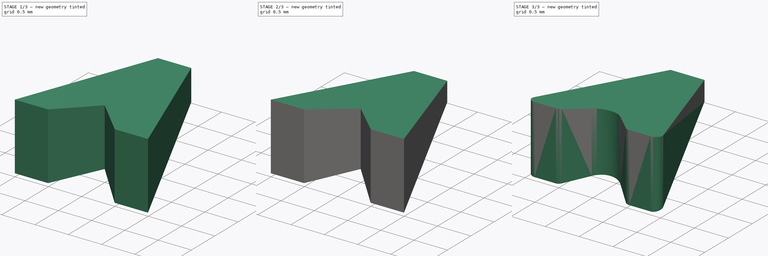
[diagram: build sequence overview — one tinted view per stage of 3, left to right]
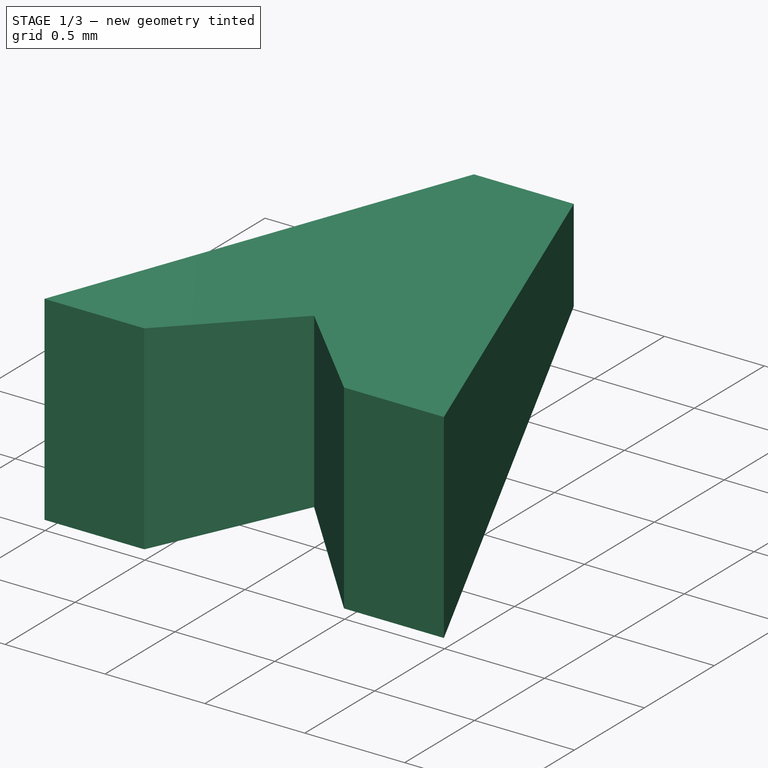
[diagram: stage 1 of 3 — iso view after this stage's code; geometry added in this stage tinted green]
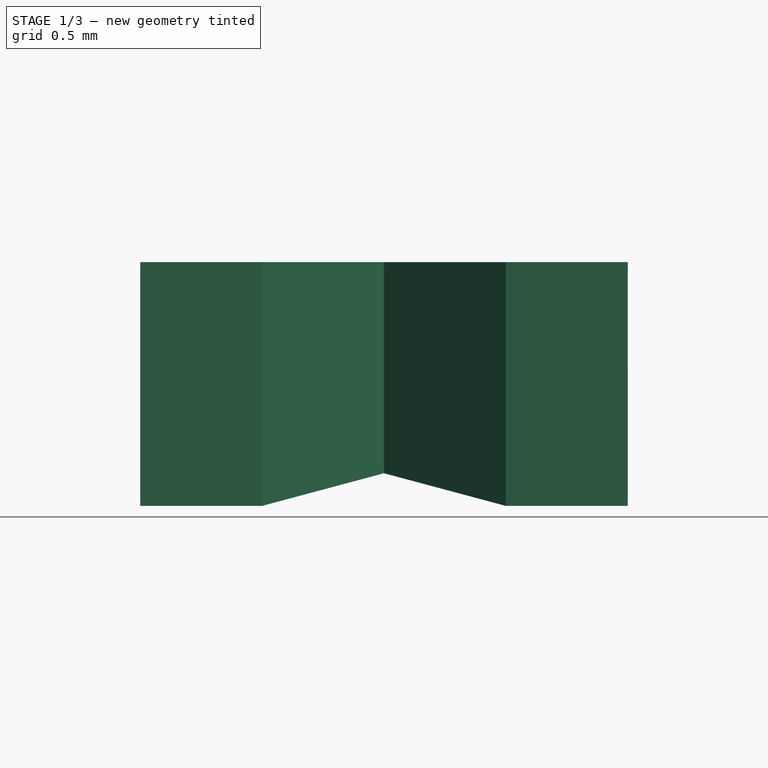
[diagram: stage 1 of 3 — front view after this stage's code; geometry added in this stage tinted green]
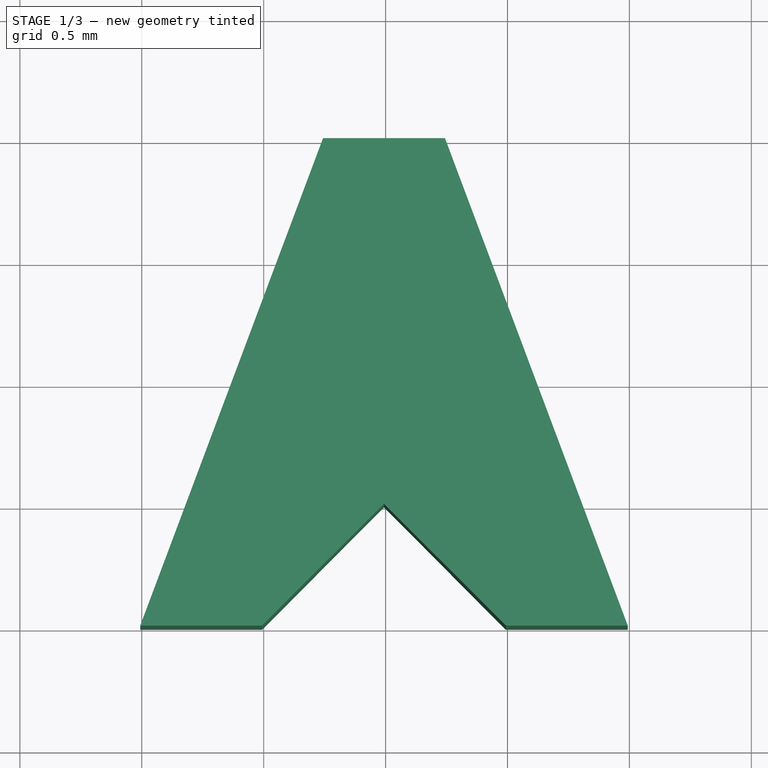
[diagram: stage 1 of 3 — top view after this stage's code; geometry added in this stage tinted green]
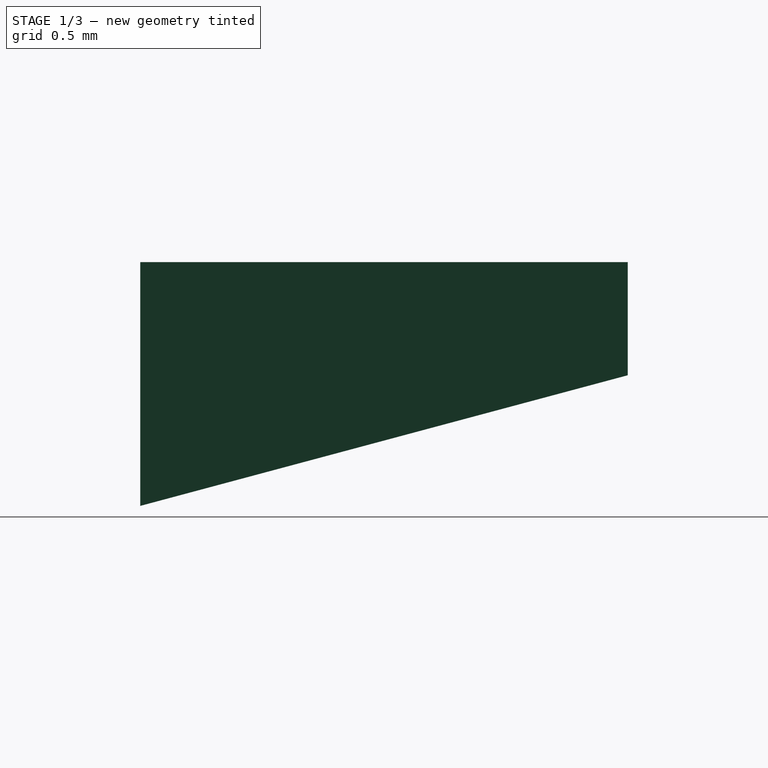
[diagram: stage 1 of 3 — right view after this stage's code; geometry added in this stage tinted green]
FCSTD DOCUMENT  (FreeCAD 0.15R4671 (Git))
Label: body_girl
License: All rights reserved
LicenseURL: http://en.wikipedia.org/wiki/All_rights_reserved
objects: Sketcher::SketchObject×2, PartDesign::Draft×2, PartDesign::Pad×1, Part::Fillet×1, PartDesign::Pocket×1
note: 9 computed .brp shape members not serialized (recipe doc carries the construction recipe); baked Part::Feature solids carry a one-line shape summary decoded from their .brp

FEATURE [Sketcher::SketchObject] Sketch001  label="body_sketch"
  Placement = pos=(-0.00651598,2.00404,0.675175) rot=(0,0,1;0rad)
  sketch-geometry (11):
    g0: GeomPoint [constr] X=0 Y=0 Z=0
    g1: GeomPoint [constr] X=-0.25 Y=0 Z=0
    g2: GeomPoint [constr] X=0.25 Y=0 Z=0
    g3: LineSegment StartX=-0.25 StartY=0 StartZ=0 EndX=-1 EndY=-2 EndZ=0
    g4: LineSegment StartX=-1 StartY=-2 StartZ=0 EndX=-0.5 EndY=-2 EndZ=0
    g5: GeomPoint [constr] X=0.5 Y=-2 Z=0
    g6: LineSegment StartX=0.5 StartY=-2 StartZ=0 EndX=1 EndY=-2 EndZ=0
    g7: LineSegment StartX=0.25 StartY=0 StartZ=0 EndX=1 EndY=-2 EndZ=0
    g8: LineSegment StartX=-0.5 StartY=-2 StartZ=0 EndX=0 EndY=-1.5 EndZ=0
    g9: LineSegment StartX=0.5 StartY=-2 StartZ=0 EndX=0 EndY=-1.5 EndZ=0
    g10: LineSegment StartX=-0.25 StartY=0 StartZ=0 EndX=0.25 EndY=0 EndZ=0
  constraints (25):
    c: DistanceX(g0) = 0
    c: DistanceY(g0) = 0
    c: Symmetric(g2,g1,g-2)
    c: Coincident(g3,g1)
    c: Coincident(g4,g3)
    c: Horizontal(g4)
    c: PointOnObject(g5,g4)
    c: Symmetric(g5,g4,g-2)
    c: Coincident(g6,g5)
    c: Horizontal(g6)
    c: Equal(g4,g6)
    c: Coincident(g7,g2)
    c: Coincident(g7,g6)
    c: Distance(g1,g2) = 0.5
    c: Distance(g2,g6) = 2
    c: Distance(g4) = 0.5
    c: Distance(g4,g5) = 1
    c: Coincident(g8,g4)
    c: PointOnObject(g8,g-2)
    c: Coincident(g9,g5)
    c: Coincident(g9,g8)
    c: DistanceY(g1) = 0
    c: Coincident(g10,g1)
    c: Coincident(g10,g2)
    c: Distance(g8,g10) = 1.5
FEATURE [PartDesign::Pad] Pad  label="body"
  Length = 1
  Length2 = 100
  Placement = pos=(-0.00651598,2.00404,0.675175) rot=(0,0,1;0rad)
  Reversed = true
  Sketch = -> Sketch001
  Type = 0
FEATURE [PartDesign::Draft] Draft  label="angle_back"
  Angle = 15
  Base = -> Pad [Face9]
  NeutralPlane = -> Pad [Face2]
  Placement = pos=(-0.00651598,2.00404,0.675175) rot=(0,0,1;0rad)
  Reversed = true
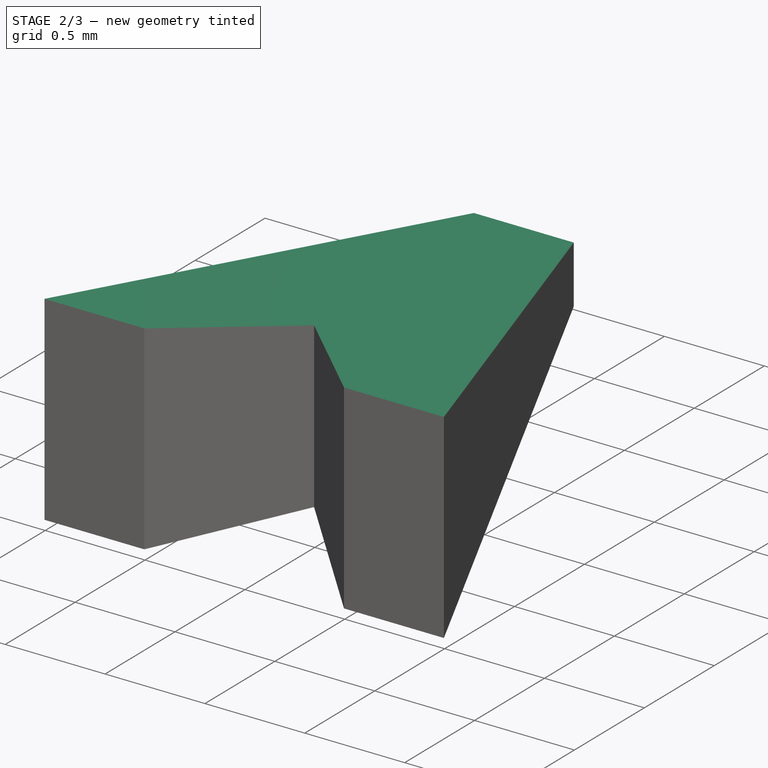
[diagram: stage 2 of 3 — iso view after this stage's code; geometry added in this stage tinted green]
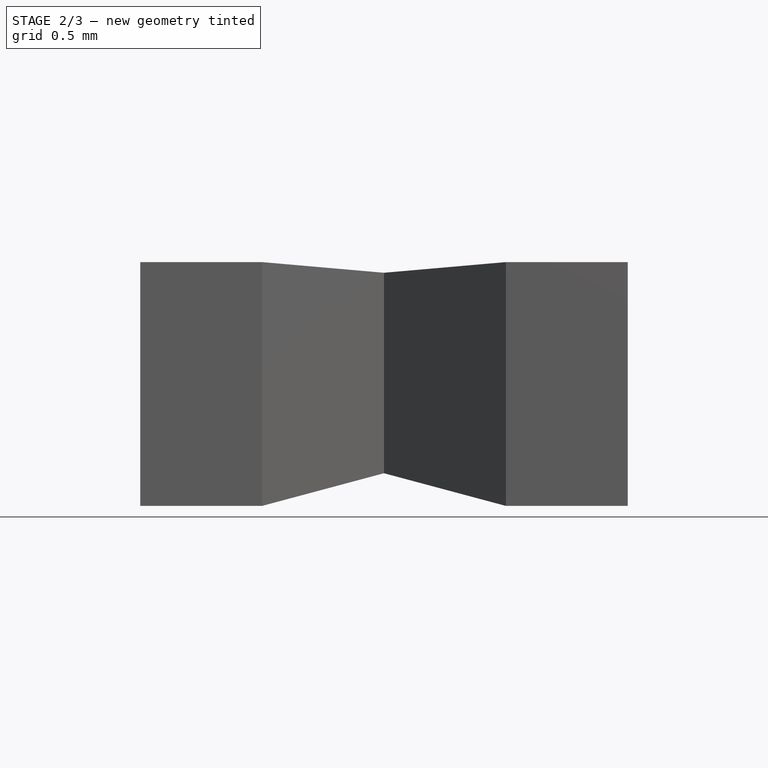
[diagram: stage 2 of 3 — front view after this stage's code; geometry added in this stage tinted green]
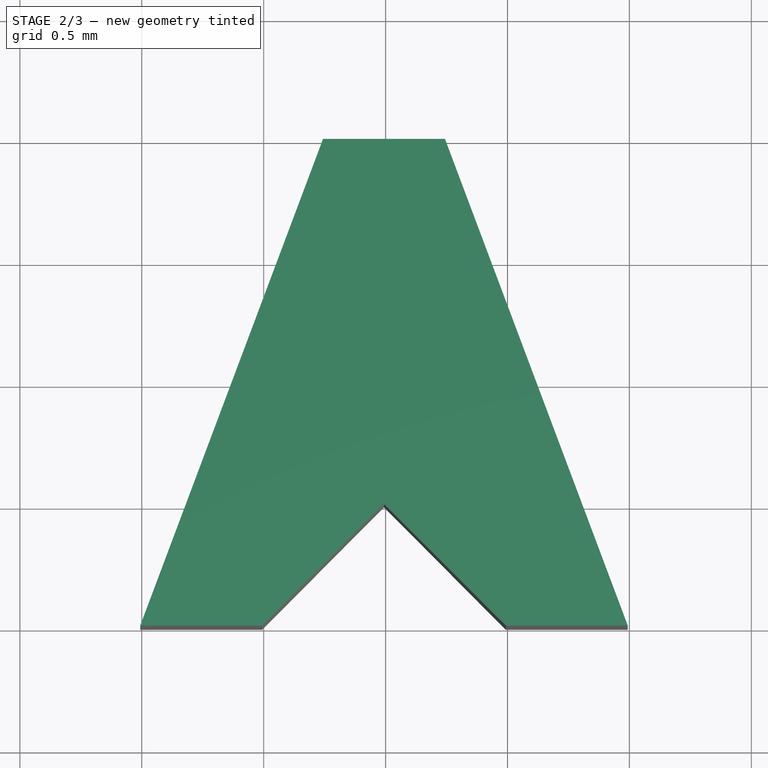
[diagram: stage 2 of 3 — top view after this stage's code; geometry added in this stage tinted green]
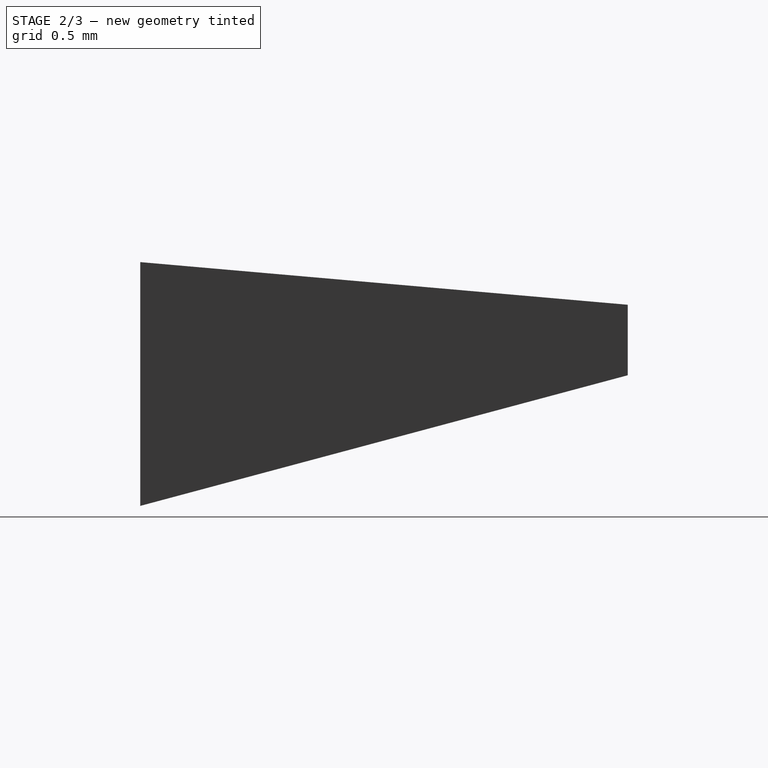
[diagram: stage 2 of 3 — right view after this stage's code; geometry added in this stage tinted green]
FEATURE [PartDesign::Draft] Draft001  label="angle_front"
  Angle = 5
  Base = -> Draft [Face8]
  NeutralPlane = -> Draft [Face2]
  Placement = pos=(-0.00651598,2.00404,0.675175) rot=(0,0,1;0rad)
  Reversed = true
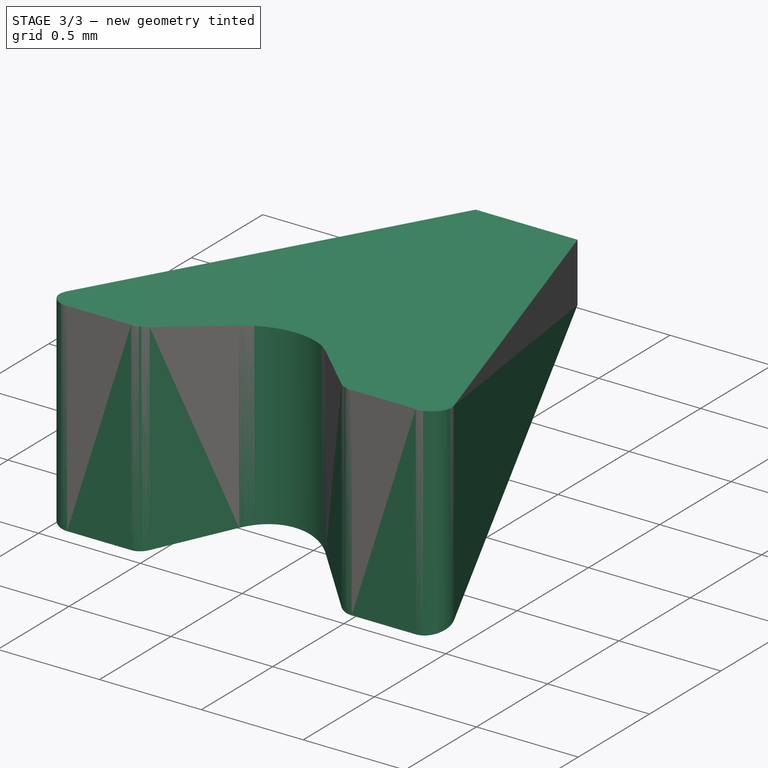
[diagram: stage 3 of 3 — iso view after this stage's code; geometry added in this stage tinted green]
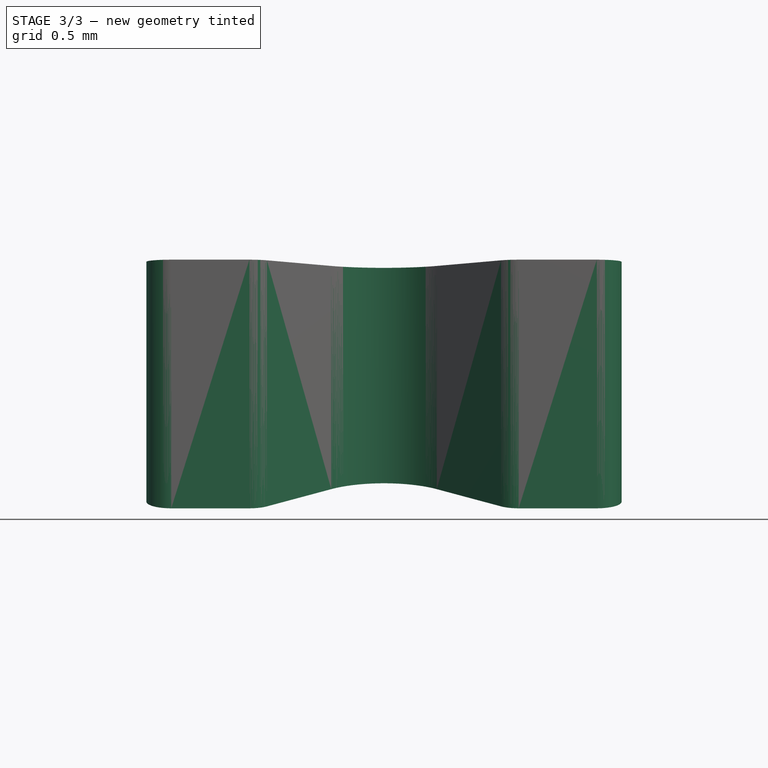
[diagram: stage 3 of 3 — front view after this stage's code; geometry added in this stage tinted green]
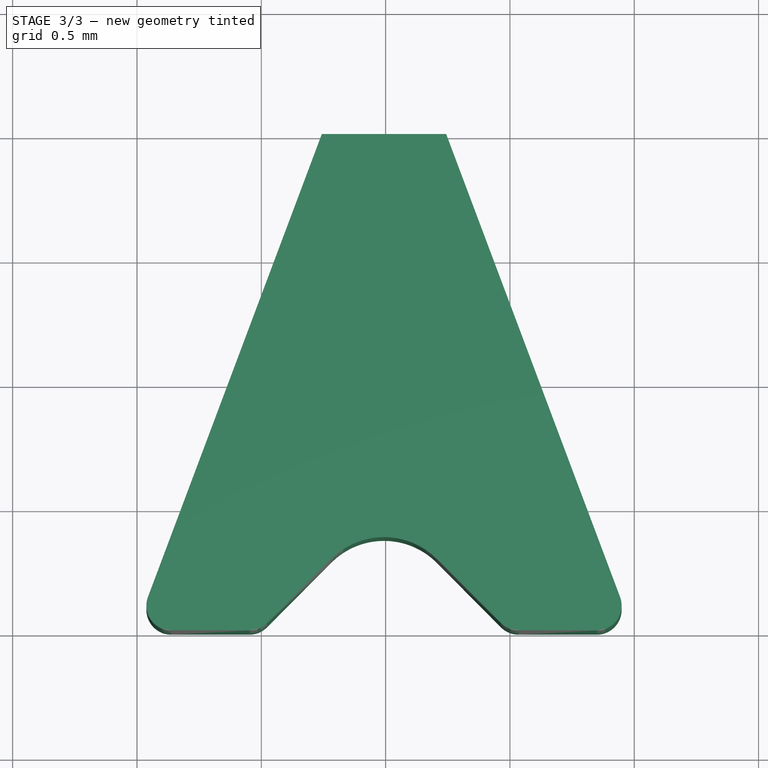
[diagram: stage 3 of 3 — top view after this stage's code; geometry added in this stage tinted green]
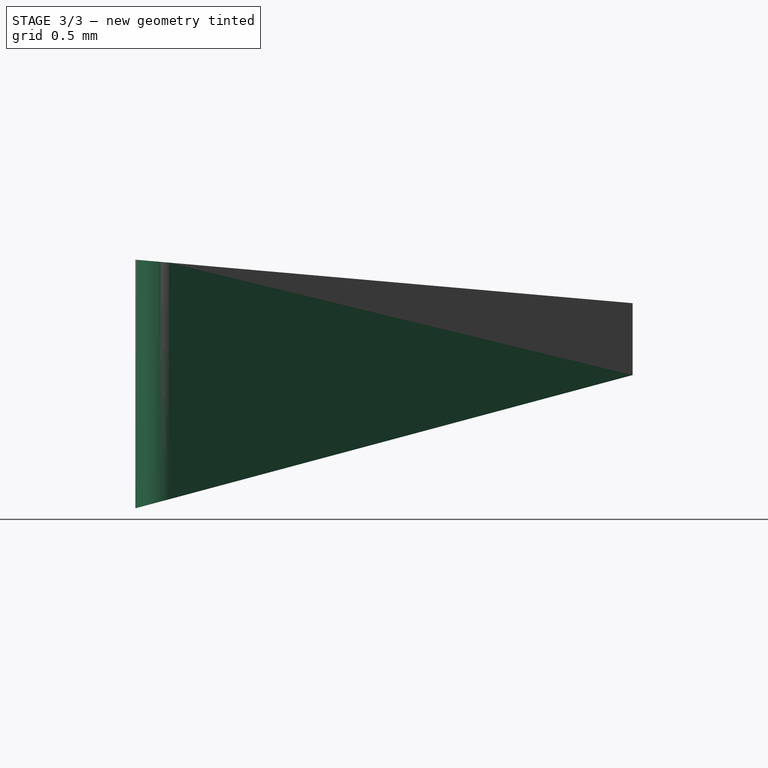
[diagram: stage 3 of 3 — right view after this stage's code; geometry added in this stage tinted green]
FEATURE [Part::Fillet] Fillet002  label="BodyRoundGirl"
  Base = -> Draft001
  Edges = 5 edges: [Edge2 r=0.1,Edge5 r=0.1,Edge8 r=0.3,Edge11 r=0.1,Edge14 r=0.1]
  Placement = pos=(0,0,-0.35) rot=(0,0,1;0rad)
FEATURE [Sketcher::SketchObject] Sketch  label="join"
  Placement = pos=(0,2.00404,-0.35) rot=(0,0.707107,0.707107;3.14159rad)
  Support = -> Fillet002 [Face4]
  sketch-geometry (7):
    g0: LineSegment StartX=0.00704909 StartY=0.453075 StartZ=0 EndX=-0.0795534 EndY=0.403075 EndZ=0
    g1: LineSegment StartX=-0.0795534 StartY=0.403075 StartZ=0 EndX=-0.0795534 EndY=0.303075 EndZ=0
    g2: LineSegment StartX=-0.0795534 StartY=0.303075 StartZ=0 EndX=0.00704909 EndY=0.253075 EndZ=0
    g3: LineSegment StartX=0.00704909 StartY=0.253075 StartZ=0 EndX=0.0936516 EndY=0.303075 EndZ=0
    g4: LineSegment StartX=0.0936516 StartY=0.303075 StartZ=0 EndX=0.0936516 EndY=0.403075 EndZ=0
    g5: LineSegment StartX=0.0936516 StartY=0.403075 StartZ=0 EndX=0.00704909 EndY=0.453075 EndZ=0
    g6: Circle [constr] CenterX=0.00704909 CenterY=0.353075 CenterZ=0 NormalX=0 NormalY=0 NormalZ=1 Radius=0.1
  constraints (16):
    c: Coincident(g0,g1)
    c: Coincident(g1,g2)
    c: Coincident(g2,g3)
    c: Coincident(g3,g4)
    c: Coincident(g4,g5)
    c: Coincident(g5,g0)
    c: Equal(g0, g1-g5) x5
    c: PointOnObject(g0,g6)
    c: PointOnObject(g1,g6)
    c: PointOnObject(g2,g6)
    c: PointOnObject(g3,g6)
    c: PointOnObject(g4,g6)
    c: PointOnObject(g5,g6)
    c: Coincident(g3,g-1)
    c: Vertical(g4)
    c: Radius(g6) = 0.1
FEATURE [PartDesign::Pocket] Pocket
  Length = 0.2
  Placement = pos=(0,0,-0.35) rot=(0,0,1;0rad)
  Sketch = -> Sketch
  Type = 0
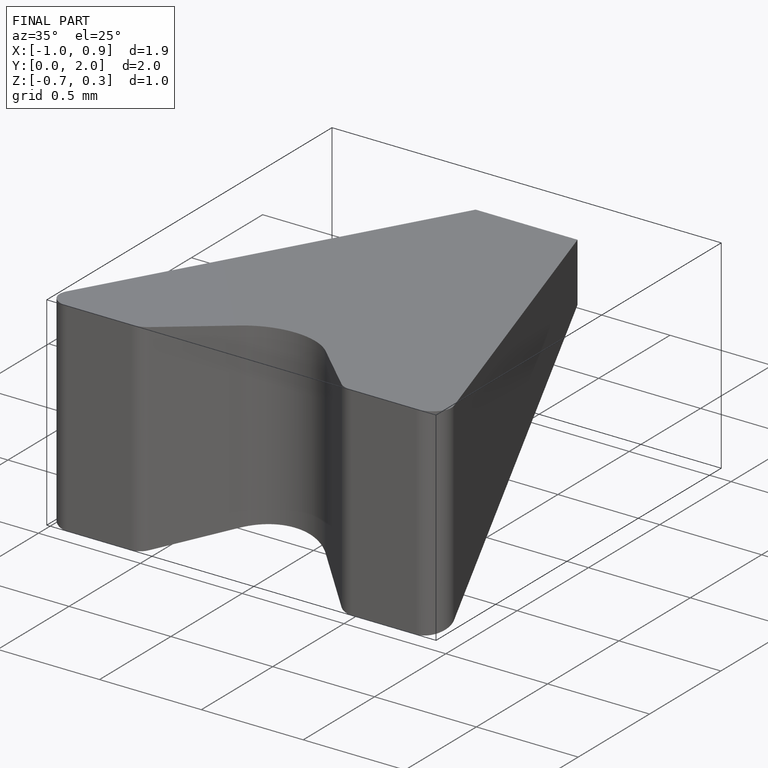
[diagram: finished part — iso view with bounding-box wireframe]
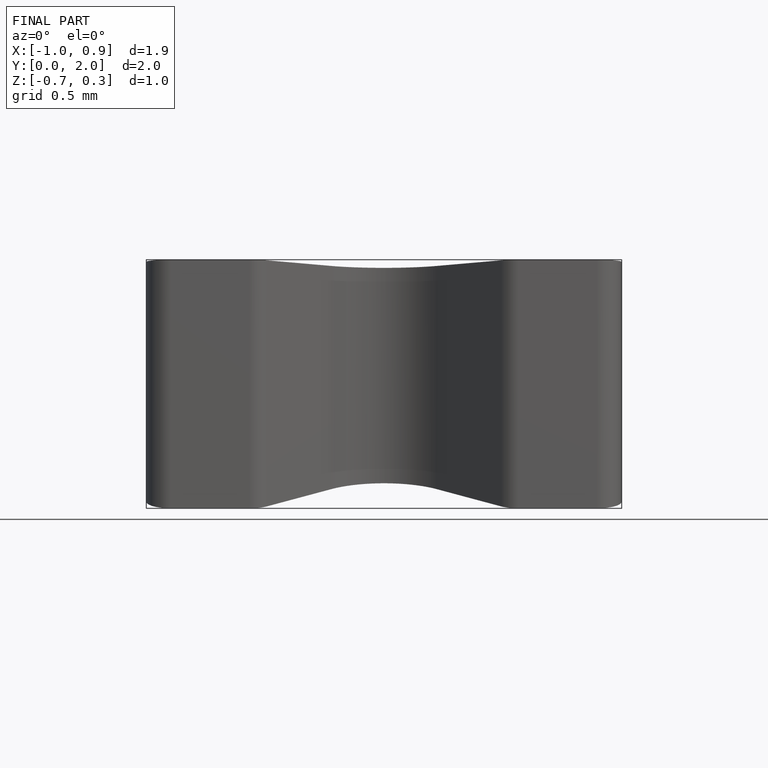
[diagram: finished part — front view with bounding-box wireframe]
